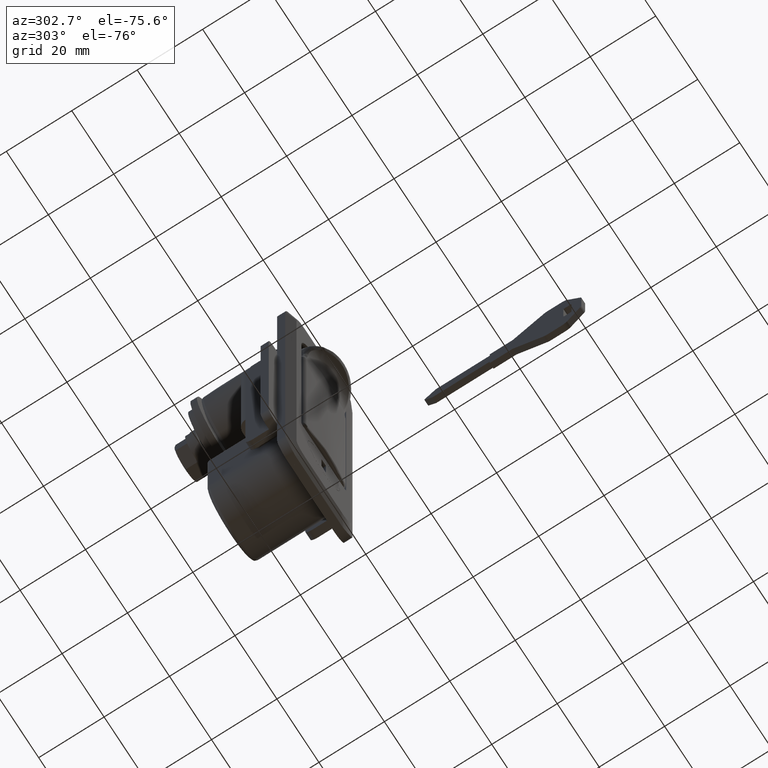
[diagram: clean part render]
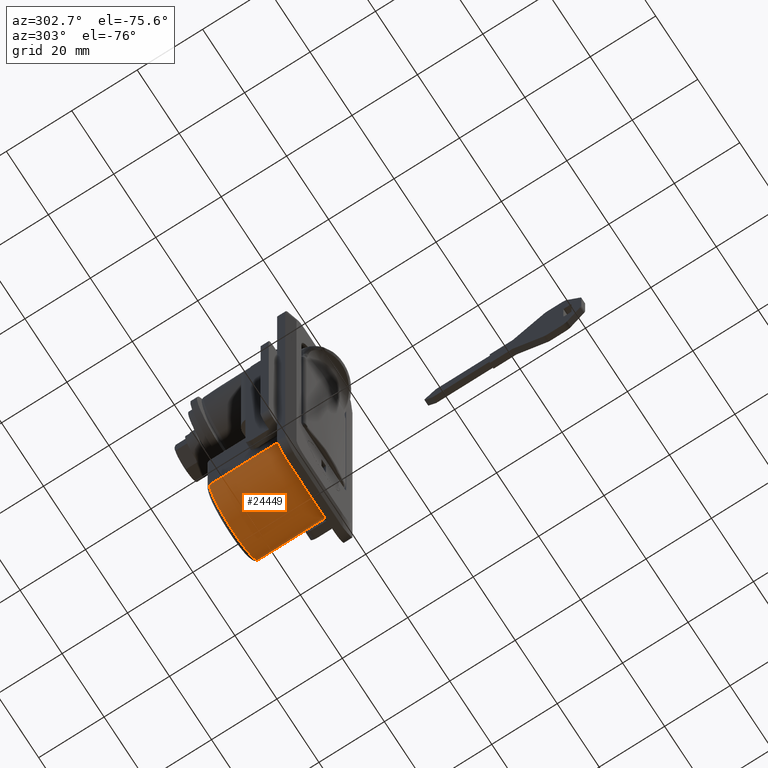
[diagram: same view with one face highlighted and labeled with its STEP entity id]
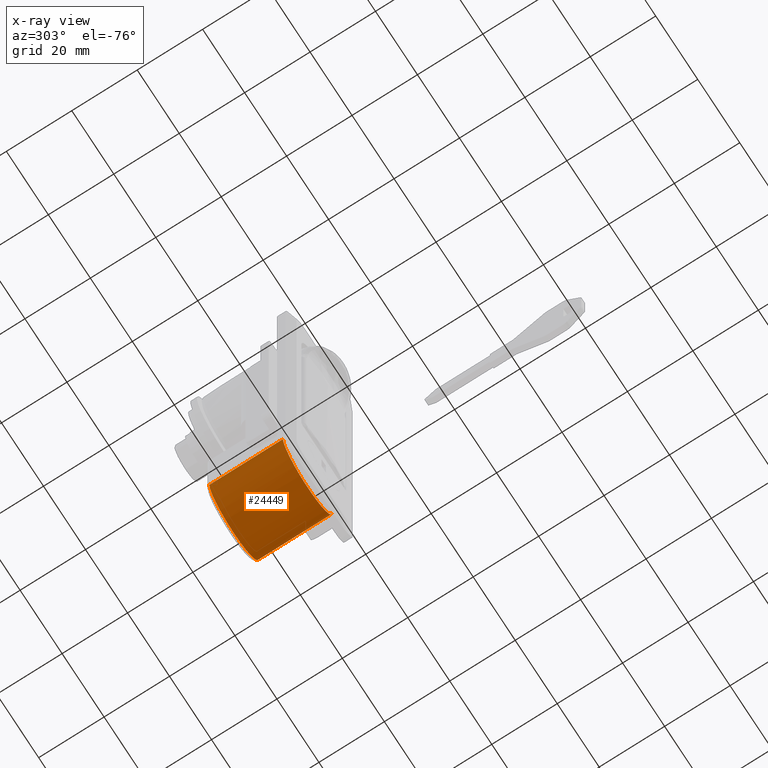
[diagram: x-ray of the same camera — body ghosted, the highlighted face saturated]
A machine part, auxiliary view. The second image highlights one B-rep face of the part: STEP entity #24449.
The next image is the same camera in x-ray: the body ghosted, the highlighted face saturated — about 0% of this face is hidden behind the body in this view.
In plain terms, the highlighted face is a freeform B-spline surface patch.
Its self-contained STEP definition (entity closure, byte-faithful):
#20702=CARTESIAN_POINT('',(4.999999999999890,-3.479126235134325,-102.0));
#20703=VERTEX_POINT('',#20702);
#20829=CARTESIAN_POINT('',(4.999999999999890,3.479126235134325,-102.0));
#20830=VERTEX_POINT('',#20829);
#20842=CARTESIAN_POINT('',(4.999999999999890,-3.479126235134325,-102.0));
#20843=CARTESIAN_POINT('',(4.999999999999878,-2.636211047215274,-102.263946535707210));
#20844=CARTESIAN_POINT('',(4.999999999999903,-1.181070021929460,-102.542753674545590));
#20845=CARTESIAN_POINT('',(4.999999999999882,1.181075709226959,-102.542774525260500));
#20846=CARTESIAN_POINT('',(4.999999999999895,2.636204455735603,-102.263919116902200));
#20847=CARTESIAN_POINT('',(4.999999999999890,3.479126235134325,-102.0));
#20848=B_SPLINE_CURVE_WITH_KNOTS('',3,(#20842,#20843,#20844,#20845,#20846,#20847),.UNSPECIFIED.,.F.,.U.,(4,1,1,4),(0.000000022567601,2.649780640765268,4.416300083799871,7.066080701997615),.UNSPECIFIED.);
#20849=EDGE_CURVE('',#20703,#20830,#20848,.T.);
#23881=CARTESIAN_POINT('',(27.500000000000000,11.650000000000000,-90.999238572383291));
#23882=VERTEX_POINT('',#23881);
#23983=CARTESIAN_POINT('',(27.500000000000000,-11.648000000000000,-91.127122652352000));
#23984=VERTEX_POINT('',#23983);
#23995=CARTESIAN_POINT('',(27.500000000000000,0.063948619482482,-102.531424495874210));
#23996=VERTEX_POINT('',#23995);
#23997=CARTESIAN_POINT('',(27.500000000000000,0.063948619482482,-102.531424495874210));
#23998=CARTESIAN_POINT('',(27.500000000000021,-0.832536416751092,-102.536528056982900));
#23999=CARTESIAN_POINT('',(27.499999999999940,-2.437694289238455,-102.359052021173600));
#24000=CARTESIAN_POINT('',(27.500000000000050,-4.598986826637177,-101.651236905638300));
#24001=CARTESIAN_POINT('',(27.499999999999989,-6.518278689984068,-100.621010847561810));
#24002=CARTESIAN_POINT('',(27.500000000000082,-8.324292097636366,-99.157817241504603));
#24003=CARTESIAN_POINT('',(27.499999999999989,-9.781665618173918,-97.345167815324075));
#24004=CARTESIAN_POINT('',(27.500000000000039,-10.726956072424841,-95.541619391212521));
#24005=CARTESIAN_POINT('',(27.499999999999819,-11.418454967905520,-93.529067879691894));
#24006=CARTESIAN_POINT('',(27.500000000000501,-11.628313480238530,-92.070619414546144));
#24007=CARTESIAN_POINT('',(27.500000000000000,-11.648000000000000,-91.127122652352000));
#24008=B_SPLINE_CURVE_WITH_KNOTS('',3,(#23997,#23998,#23999,#24000,#24001,#24002,#24003,#24004,#24005,#24006,#24007),.UNSPECIFIED.,.F.,.U.,(4,1,1,1,1,1,1,1,4),(0.000000125617269,2.689471750132867,4.812764078196855,6.794501799568840,9.200834150097988,11.748784671725970,13.730533290881599,15.287605976912751,18.118639096821639),.UNSPECIFIED.);
#24009=EDGE_CURVE('',#23996,#23984,#24008,.T.);
#24011=CARTESIAN_POINT('',(27.500000000000000,11.650000000000000,-90.999238572383291));
#24012=CARTESIAN_POINT('',(27.499999999999979,11.642847669444970,-91.706949231117321));
#24013=CARTESIAN_POINT('',(27.500000000000039,11.480074610819910,-93.309662675366098));
#24014=CARTESIAN_POINT('',(27.499999999999940,10.789279767456931,-95.482391690840117));
#24015=CARTESIAN_POINT('',(27.500000000000160,9.636886843243316,-97.550788987470696));
#24016=CARTESIAN_POINT('',(27.499999999999961,8.145633324181866,-99.333705240202050));
#24017=CARTESIAN_POINT('',(27.500000000000011,6.310412082814795,-100.762527847598900));
#24018=CARTESIAN_POINT('',(27.500000000000011,4.280927792215653,-101.786236294612810));
#24019=CARTESIAN_POINT('',(27.500000000000089,2.233613020692748,-102.385849611742800));
#24020=CARTESIAN_POINT('',(27.499999999999758,0.771693248158820,-102.527605562513200));
#24021=CARTESIAN_POINT('',(27.500000000000000,0.063948619482482,-102.531424495874210));
#24022=B_SPLINE_CURVE_WITH_KNOTS('',3,(#24011,#24012,#24013,#24014,#24015,#24016,#24017,#24018,#24019,#24020,#24021),.UNSPECIFIED.,.F.,.U.,(4,1,1,1,1,1,1,1,4),(0.000000125645940,2.123274497186566,4.812764736777139,6.794502729320199,9.200835409111717,11.748786279391490,13.730535169727920,15.995373442806120,18.118641576115330),.UNSPECIFIED.);
#24023=EDGE_CURVE('',#23882,#23996,#24022,.T.);
#24387=CARTESIAN_POINT('',(4.437499999999882,11.645408681788730,-90.533240033759398));
#24388=CARTESIAN_POINT('',(28.076562500000009,11.645408681788730,-90.533240033759398));
#24389=CARTESIAN_POINT('',(4.437499999999881,12.008683481821450,-102.698192647221900));
#24390=CARTESIAN_POINT('',(28.076562499999998,12.008683481821450,-102.698192647221900));
#24391=CARTESIAN_POINT('',(4.437499999999882,-0.160536616508537,-102.530493909812610));
#24392=CARTESIAN_POINT('',(28.076562500000009,-0.160536616508537,-102.530493909812610));
#24393=CARTESIAN_POINT('',(4.437499999999881,-12.329756714838531,-102.362795172403200));
#24394=CARTESIAN_POINT('',(28.076562499999998,-12.329756714838531,-102.362795172403200));
#24395=CARTESIAN_POINT('',(4.437499999999882,-11.631403664065100,-90.212472391316140));
#24396=CARTESIAN_POINT('',(28.076562500000009,-11.631403664065100,-90.212472391316140));
#24404=(BOUNDED_SURFACE()B_SPLINE_SURFACE(1,2,((#24387,#24389,#24391,#24393,#24395),(#24388,#24390,#24392,#24394,#24396)),.UNSPECIFIED.,.F.,.F.,.U.)B_SPLINE_SURFACE_WITH_KNOTS((2,2),(3,2,3),(0.0,23.639062500000129),(0.0,19.901646156626960,39.803292313253912),.UNSPECIFIED.)GEOMETRIC_REPRESENTATION_ITEM()RATIONAL_B_SPLINE_SURFACE(((1.0,0.691513055782269,1.0,0.691513055782269,1.0),(1.0,0.691513055782269,1.0,0.691513055782269,1.0)))REPRESENTATION_ITEM('')SURFACE());
#24405=CARTESIAN_POINT('',(4.999999999999920,11.650000000000000,-90.999238572383291));
#24406=VERTEX_POINT('',#24405);
#24407=CARTESIAN_POINT('',(4.999999999999920,11.650000000000000,-90.999238572383291));
#24408=CARTESIAN_POINT('',(27.500000000000000,11.650000000000000,-90.999238572383291));
#24409=QUASI_UNIFORM_CURVE('',1,(#24407,#24408),.UNSPECIFIED.,.F.,.U.);
#24410=EDGE_CURVE('',#24406,#23882,#24409,.T.);
#24411=ORIENTED_EDGE('',*,*,#24410,.T.);
#24412=ORIENTED_EDGE('',*,*,#24023,.T.);
#24413=ORIENTED_EDGE('',*,*,#24009,.T.);
#24414=CARTESIAN_POINT('',(4.999999999999890,-11.648000000000000,-91.127122652352000));
#24415=VERTEX_POINT('',#24414);
#24416=CARTESIAN_POINT('',(4.999999999999890,-11.648000000000000,-91.127122652352000));
#24417=CARTESIAN_POINT('',(27.500000000000000,-11.648000000000000,-91.127122652352000));
#24418=QUASI_UNIFORM_CURVE('',1,(#24416,#24417),.UNSPECIFIED.,.F.,.U.);
#24419=EDGE_CURVE('',#24415,#23984,#24418,.T.);
#24420=ORIENTED_EDGE('',*,*,#24419,.F.);
#24421=CARTESIAN_POINT('',(4.999999999999890,-11.648000000000000,-91.127122652352000));
#24422=CARTESIAN_POINT('',(4.999999999999877,-11.629035937160580,-92.034534958122066));
#24423=CARTESIAN_POINT('',(4.999999999999938,-11.408736893237711,-93.618439277609923));
#24424=CARTESIAN_POINT('',(4.999999999999814,-10.682065690599570,-95.656619181381672));
#24425=CARTESIAN_POINT('',(5.000000000000022,-9.822730051472169,-97.217865767010608));
#24426=CARTESIAN_POINT('',(4.999999999999772,-8.752651479385190,-98.642198111305532));
#24427=CARTESIAN_POINT('',(4.999999999999928,-7.581520887459976,-99.779289457689742));
#24428=CARTESIAN_POINT('',(4.999999999999935,-5.836591437081052,-101.050168644668900));
#24429=CARTESIAN_POINT('',(4.999999999999880,-4.489847514305003,-101.684165642060800));
#24430=CARTESIAN_POINT('',(4.999999999999890,-3.479126235134325,-102.0));
#24431=B_SPLINE_CURVE_WITH_KNOTS('',3,(#24421,#24422,#24423,#24424,#24425,#24426,#24427,#24428,#24429,#24430),.UNSPECIFIED.,.F.,.U.,(4,1,1,1,1,1,1,4),(0.000000094634181,2.722789426406127,4.764911748984083,6.466694534128433,8.054914375012558,10.097054070952080,11.345008293636459,14.521608962446340),.UNSPECIFIED.);
#24432=EDGE_CURVE('',#24415,#20703,#24431,.T.);
#24433=ORIENTED_EDGE('',*,*,#24432,.T.);
#24434=ORIENTED_EDGE('',*,*,#20849,.T.);
#24435=CARTESIAN_POINT('',(4.999999999999890,3.479126235134325,-102.0));
#24436=CARTESIAN_POINT('',(4.999999999999882,4.571580003346355,-101.658632202393210));
#24437=CARTESIAN_POINT('',(4.999999999999892,6.202824104396510,-100.868647626914790));
#24438=CARTESIAN_POINT('',(4.999999999999879,8.194843836550440,-99.252751043226382));
#24439=CARTESIAN_POINT('',(4.999999999999883,9.565365089923592,-97.650620728951196));
#24440=CARTESIAN_POINT('',(4.999999999999934,10.690053537001660,-95.690738242012969));
#24441=CARTESIAN_POINT('',(4.999999999999840,11.446822620898820,-93.476989990591676));
#24442=CARTESIAN_POINT('',(4.999999999999989,11.641623583088199,-91.838496434134285));
#24443=CARTESIAN_POINT('',(4.999999999999920,11.650000000000000,-90.999238572383291));
#24444=B_SPLINE_CURVE_WITH_KNOTS('',3,(#24435,#24436,#24437,#24438,#24439,#24440,#24441,#24442,#24443),.UNSPECIFIED.,.F.,.U.,(4,1,1,1,1,1,4),(0.000000098753038,3.433477070936707,5.379122279844420,7.668093946325397,9.728171928999412,12.131634322613980,14.649510852150120),.UNSPECIFIED.);
#24445=EDGE_CURVE('',#20830,#24406,#24444,.T.);
#24446=ORIENTED_EDGE('',*,*,#24445,.T.);
#24447=EDGE_LOOP('',(#24411,#24412,#24413,#24420,#24433,#24434,#24446));
#24448=FACE_OUTER_BOUND('',#24447,.T.);
#24449=ADVANCED_FACE('',(#24448),#24404,.T.);